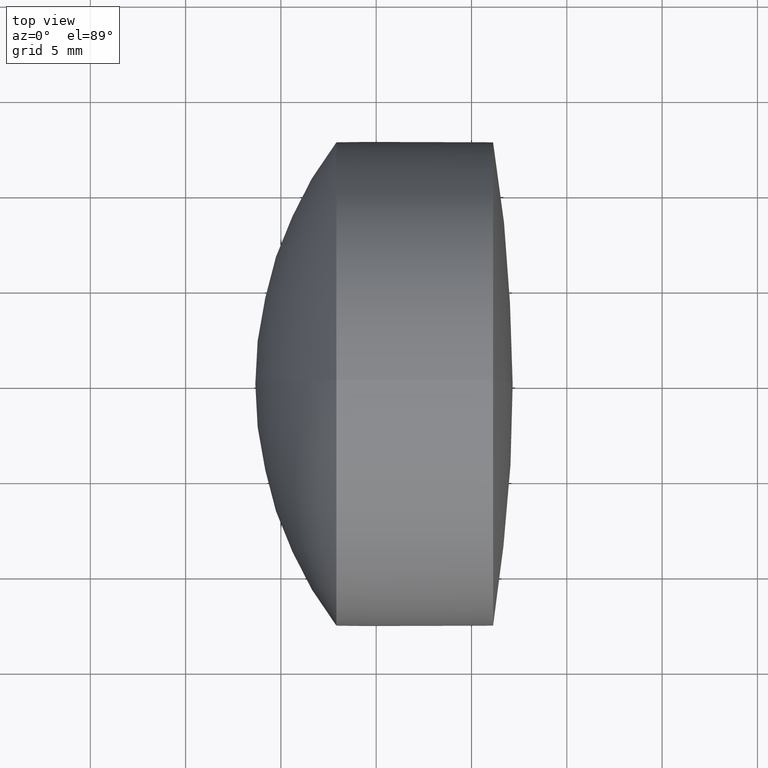
[diagram: clean part render]
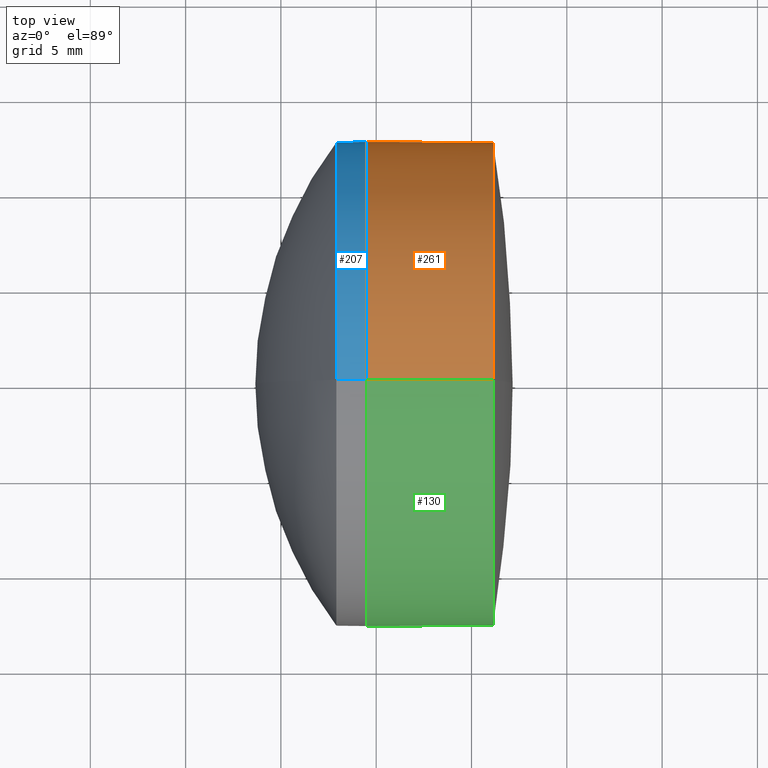
[diagram: same view with three faces highlighted in distinct colors, each labeled with its STEP entity id]
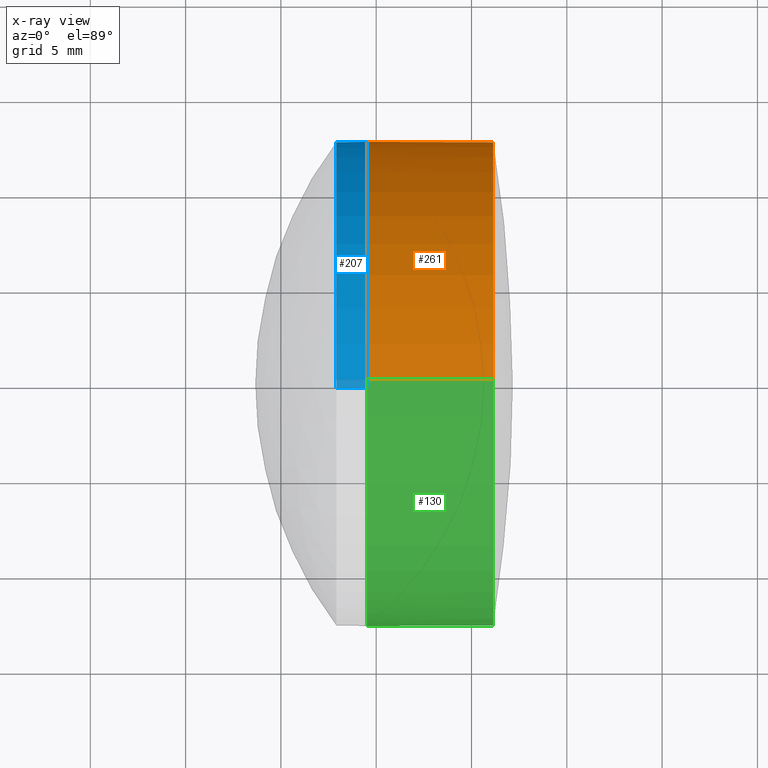
[diagram: x-ray of the same camera — body ghosted, the three highlighted faces saturated]
A machine part, top view with three faces highlighted in distinct colors.
The next image is the same camera in x-ray (body ghosted, the three faces saturated) — at least one of them is partly hidden behind the body in this view.
Their STEP definitions:

[orange] entity #261 — the highlighted cylindrical surface (partial cylindrical patch) has radius 12.7 mm, axis along (-1, -0, -0).
#1 = AXIS2_PLACEMENT_3D ( 'NONE', #118, #89, #330 ) ;
#5 = ORIENTED_EDGE ( 'NONE', *, *, #327, .F. ) ;
#7 = EDGE_CURVE ( 'NONE', #31, #111, #198, .T. ) ;
#12 = DIRECTION ( 'NONE',  ( -1.000000000000000000, -0.0000000000000000000, -0.0000000000000000000 ) ) ;
#16 = CIRCLE ( 'NONE', #125, 12.69999999999999800 ) ;
#27 = VERTEX_POINT ( 'NONE', #171 ) ;
#30 = CARTESIAN_POINT ( 'NONE',  ( 281.1325348403413500, 1.555301434917137400E-015, -12.69999999999998500 ) ) ;
#31 = VERTEX_POINT ( 'NONE', #30 ) ;
#32 = VECTOR ( 'NONE', #145, 1000.000000000000000 ) ;
#36 = DIRECTION ( 'NONE',  ( 0.0000000000000000000, 0.0000000000000000000, 1.000000000000000000 ) ) ;
#48 = CARTESIAN_POINT ( 'NONE',  ( -0.5519199926577972300, 1.555301434917137800E-015, -12.69999999999999200 ) ) ;
#86 = ORIENTED_EDGE ( 'NONE', *, *, #187, .F. ) ;
#89 = DIRECTION ( 'NONE',  ( -1.000000000000000000, -0.0000000000000000000, -0.0000000000000000000 ) ) ;
#94 = CARTESIAN_POINT ( 'NONE',  ( 274.5040750828525800, 0.0000000000000000000, 12.69999999999999800 ) ) ;
#96 = DIRECTION ( 'NONE',  ( 0.0000000000000000000, 0.0000000000000000000, 1.000000000000000000 ) ) ;
#105 = DIRECTION ( 'NONE',  ( -1.000000000000000000, -0.0000000000000000000, -0.0000000000000000000 ) ) ;
#108 = EDGE_CURVE ( 'NONE', #27, #31, #110, .T. ) ;
#110 = CIRCLE ( 'NONE', #184, 12.69999999999998500 ) ;
#111 = VERTEX_POINT ( 'NONE', #304 ) ;
#118 = CARTESIAN_POINT ( 'NONE',  ( -0.5519199926577972300, 0.0000000000000000000, 0.0000000000000000000 ) ) ;
#125 = AXIS2_PLACEMENT_3D ( 'NONE', #190, #12, #36 ) ;
#126 = CARTESIAN_POINT ( 'NONE',  ( -0.5519199926577972300, 0.0000000000000000000, 12.69999999999999200 ) ) ;
#132 = EDGE_LOOP ( 'NONE', ( #231, #301, #5, #86 ) ) ;
#145 = DIRECTION ( 'NONE',  ( -1.000000000000000000, -0.0000000000000000000, -0.0000000000000000000 ) ) ;
#154 = DIRECTION ( 'NONE',  ( -1.000000000000000000, -0.0000000000000000000, -0.0000000000000000000 ) ) ;
#158 = LINE ( 'NONE', #126, #32 ) ;
#171 = CARTESIAN_POINT ( 'NONE',  ( 281.1325348403413500, 0.0000000000000000000, 12.69999999999998500 ) ) ;
#184 = AXIS2_PLACEMENT_3D ( 'NONE', #245, #154, #96 ) ;
#187 = EDGE_CURVE ( 'NONE', #27, #268, #158, .T. ) ;
#190 = CARTESIAN_POINT ( 'NONE',  ( 274.5040750828525800, 0.0000000000000000000, 0.0000000000000000000 ) ) ;
#198 = LINE ( 'NONE', #48, #292 ) ;
#231 = ORIENTED_EDGE ( 'NONE', *, *, #108, .T. ) ;
#245 = CARTESIAN_POINT ( 'NONE',  ( 281.1325348403413500, 0.0000000000000000000, 0.0000000000000000000 ) ) ;
#261 = ADVANCED_FACE ( 'NONE', ( #295 ), #346, .T. ) ;
#268 = VERTEX_POINT ( 'NONE', #94 ) ;
#292 = VECTOR ( 'NONE', #105, 1000.000000000000000 ) ;
#295 = FACE_OUTER_BOUND ( 'NONE', #132, .T. ) ;
#301 = ORIENTED_EDGE ( 'NONE', *, *, #7, .T. ) ;
#304 = CARTESIAN_POINT ( 'NONE',  ( 274.5040750828525800, 1.555301434917138200E-015, -12.69999999999999000 ) ) ;
#327 = EDGE_CURVE ( 'NONE', #268, #111, #16, .T. ) ;
#330 = DIRECTION ( 'NONE',  ( 0.0000000000000000000, 0.0000000000000000000, 1.000000000000000000 ) ) ;
#346 = CYLINDRICAL_SURFACE ( 'NONE', #1, 12.69999999999999200 ) ;

[blue] entity #207 — the highlighted cylindrical surface (partial cylindrical patch) has radius 12.7 mm, axis along (-1, -0, -0).
#19 = AXIS2_PLACEMENT_3D ( 'NONE', #257, #260, #313 ) ;
#22 = CARTESIAN_POINT ( 'NONE',  ( 124.5233095260452400, 1.555301434917138600E-015, -12.70000000000000100 ) ) ;
#25 = CARTESIAN_POINT ( 'NONE',  ( 272.9115847359946700, 0.0000000000000000000, 0.0000000000000000000 ) ) ;
#28 = CARTESIAN_POINT ( 'NONE',  ( 274.5040750828525800, 0.0000000000000000000, 0.0000000000000000000 ) ) ;
#39 = AXIS2_PLACEMENT_3D ( 'NONE', #28, #305, #148 ) ;
#44 = EDGE_CURVE ( 'NONE', #157, #139, #82, .T. ) ;
#56 = LINE ( 'NONE', #22, #253 ) ;
#58 = EDGE_CURVE ( 'NONE', #189, #318, #56, .T. ) ;
#70 = EDGE_CURVE ( 'NONE', #157, #189, #85, .T. ) ;
#72 = CARTESIAN_POINT ( 'NONE',  ( 274.5040750828525800, 0.0000000000000000000, 12.69999999999999600 ) ) ;
#82 = LINE ( 'NONE', #179, #322 ) ;
#85 = CIRCLE ( 'NONE', #39, 12.69999999999999600 ) ;
#100 = DIRECTION ( 'NONE',  ( -1.000000000000000000, -0.0000000000000000000, -0.0000000000000000000 ) ) ;
#102 = DIRECTION ( 'NONE',  ( -1.000000000000000000, -0.0000000000000000000, -0.0000000000000000000 ) ) ;
#116 = DIRECTION ( 'NONE',  ( 0.0000000000000000000, 0.0000000000000000000, 1.000000000000000000 ) ) ;
#120 = AXIS2_PLACEMENT_3D ( 'NONE', #25, #100, #116 ) ;
#133 = ORIENTED_EDGE ( 'NONE', *, *, #44, .F. ) ;
#136 = EDGE_LOOP ( 'NONE', ( #201, #259, #347, #133 ) ) ;
#139 = VERTEX_POINT ( 'NONE', #250 ) ;
#148 = DIRECTION ( 'NONE',  ( 0.0000000000000000000, 0.0000000000000000000, 1.000000000000000000 ) ) ;
#157 = VERTEX_POINT ( 'NONE', #72 ) ;
#179 = CARTESIAN_POINT ( 'NONE',  ( 124.5233095260452400, 0.0000000000000000000, 12.70000000000000100 ) ) ;
#181 = DIRECTION ( 'NONE',  ( -1.000000000000000000, -0.0000000000000000000, -0.0000000000000000000 ) ) ;
#189 = VERTEX_POINT ( 'NONE', #336 ) ;
#201 = ORIENTED_EDGE ( 'NONE', *, *, #70, .T. ) ;
#207 = ADVANCED_FACE ( 'NONE', ( #266 ), #239, .T. ) ;
#208 = CIRCLE ( 'NONE', #120, 12.70000000000000600 ) ;
#210 = EDGE_CURVE ( 'NONE', #139, #318, #208, .T. ) ;
#215 = CARTESIAN_POINT ( 'NONE',  ( 272.9115847359946700, 0.0000000000000000000, -12.69999999999999900 ) ) ;
#239 = CYLINDRICAL_SURFACE ( 'NONE', #19, 12.70000000000000100 ) ;
#250 = CARTESIAN_POINT ( 'NONE',  ( 272.9115847359946700, -1.555301434917138400E-015, 12.70000000000000600 ) ) ;
#253 = VECTOR ( 'NONE', #181, 1000.000000000000000 ) ;
#257 = CARTESIAN_POINT ( 'NONE',  ( 124.5233095260452400, 0.0000000000000000000, 0.0000000000000000000 ) ) ;
#259 = ORIENTED_EDGE ( 'NONE', *, *, #58, .T. ) ;
#260 = DIRECTION ( 'NONE',  ( -1.000000000000000000, -0.0000000000000000000, -0.0000000000000000000 ) ) ;
#266 = FACE_OUTER_BOUND ( 'NONE', #136, .T. ) ;
#305 = DIRECTION ( 'NONE',  ( -1.000000000000000000, -0.0000000000000000000, -0.0000000000000000000 ) ) ;
#313 = DIRECTION ( 'NONE',  ( 0.0000000000000000000, 0.0000000000000000000, 1.000000000000000000 ) ) ;
#318 = VERTEX_POINT ( 'NONE', #215 ) ;
#322 = VECTOR ( 'NONE', #102, 1000.000000000000000 ) ;
#336 = CARTESIAN_POINT ( 'NONE',  ( 274.5040750828525800, 1.555301434917138200E-015, -12.69999999999999600 ) ) ;
#347 = ORIENTED_EDGE ( 'NONE', *, *, #210, .F. ) ;

[green] entity #130 — the highlighted cylindrical surface (partial cylindrical patch) has radius 12.7 mm, axis along (-1, -0, -0).
#3 = EDGE_CURVE ( 'NONE', #111, #268, #69, .T. ) ;
#7 = EDGE_CURVE ( 'NONE', #31, #111, #198, .T. ) ;
#9 = FACE_OUTER_BOUND ( 'NONE', #17, .T. ) ;
#17 = EDGE_LOOP ( 'NONE', ( #185, #97, #112, #153 ) ) ;
#27 = VERTEX_POINT ( 'NONE', #171 ) ;
#30 = CARTESIAN_POINT ( 'NONE',  ( 281.1325348403413500, 1.555301434917137400E-015, -12.69999999999998500 ) ) ;
#31 = VERTEX_POINT ( 'NONE', #30 ) ;
#32 = VECTOR ( 'NONE', #145, 1000.000000000000000 ) ;
#43 = CIRCLE ( 'NONE', #271, 12.69999999999998500 ) ;
#45 = CARTESIAN_POINT ( 'NONE',  ( -0.5519199926577972300, 0.0000000000000000000, 0.0000000000000000000 ) ) ;
#48 = CARTESIAN_POINT ( 'NONE',  ( -0.5519199926577972300, 1.555301434917137800E-015, -12.69999999999999200 ) ) ;
#69 = CIRCLE ( 'NONE', #218, 12.69999999999999800 ) ;
#94 = CARTESIAN_POINT ( 'NONE',  ( 274.5040750828525800, 0.0000000000000000000, 12.69999999999999800 ) ) ;
#97 = ORIENTED_EDGE ( 'NONE', *, *, #197, .T. ) ;
#101 = DIRECTION ( 'NONE',  ( 0.0000000000000000000, 0.0000000000000000000, 1.000000000000000000 ) ) ;
#105 = DIRECTION ( 'NONE',  ( -1.000000000000000000, -0.0000000000000000000, -0.0000000000000000000 ) ) ;
#111 = VERTEX_POINT ( 'NONE', #304 ) ;
#112 = ORIENTED_EDGE ( 'NONE', *, *, #187, .T. ) ;
#126 = CARTESIAN_POINT ( 'NONE',  ( -0.5519199926577972300, 0.0000000000000000000, 12.69999999999999200 ) ) ;
#130 = ADVANCED_FACE ( 'NONE', ( #9 ), #278, .T. ) ;
#145 = DIRECTION ( 'NONE',  ( -1.000000000000000000, -0.0000000000000000000, -0.0000000000000000000 ) ) ;
#153 = ORIENTED_EDGE ( 'NONE', *, *, #3, .F. ) ;
#158 = LINE ( 'NONE', #126, #32 ) ;
#171 = CARTESIAN_POINT ( 'NONE',  ( 281.1325348403413500, 0.0000000000000000000, 12.69999999999998500 ) ) ;
#172 = DIRECTION ( 'NONE',  ( 0.0000000000000000000, 0.0000000000000000000, 1.000000000000000000 ) ) ;
#185 = ORIENTED_EDGE ( 'NONE', *, *, #7, .F. ) ;
#187 = EDGE_CURVE ( 'NONE', #27, #268, #158, .T. ) ;
#197 = EDGE_CURVE ( 'NONE', #31, #27, #43, .T. ) ;
#198 = LINE ( 'NONE', #48, #292 ) ;
#205 = CARTESIAN_POINT ( 'NONE',  ( 281.1325348403413500, 0.0000000000000000000, 0.0000000000000000000 ) ) ;
#218 = AXIS2_PLACEMENT_3D ( 'NONE', #332, #248, #172 ) ;
#236 = DIRECTION ( 'NONE',  ( -1.000000000000000000, -0.0000000000000000000, -0.0000000000000000000 ) ) ;
#248 = DIRECTION ( 'NONE',  ( -1.000000000000000000, -0.0000000000000000000, -0.0000000000000000000 ) ) ;
#268 = VERTEX_POINT ( 'NONE', #94 ) ;
#271 = AXIS2_PLACEMENT_3D ( 'NONE', #205, #276, #101 ) ;
#276 = DIRECTION ( 'NONE',  ( -1.000000000000000000, -0.0000000000000000000, -0.0000000000000000000 ) ) ;
#277 = DIRECTION ( 'NONE',  ( 0.0000000000000000000, 0.0000000000000000000, 1.000000000000000000 ) ) ;
#278 = CYLINDRICAL_SURFACE ( 'NONE', #312, 12.69999999999999200 ) ;
#292 = VECTOR ( 'NONE', #105, 1000.000000000000000 ) ;
#304 = CARTESIAN_POINT ( 'NONE',  ( 274.5040750828525800, 1.555301434917138200E-015, -12.69999999999999000 ) ) ;
#312 = AXIS2_PLACEMENT_3D ( 'NONE', #45, #236, #277 ) ;
#332 = CARTESIAN_POINT ( 'NONE',  ( 274.5040750828525800, 0.0000000000000000000, 0.0000000000000000000 ) ) ;